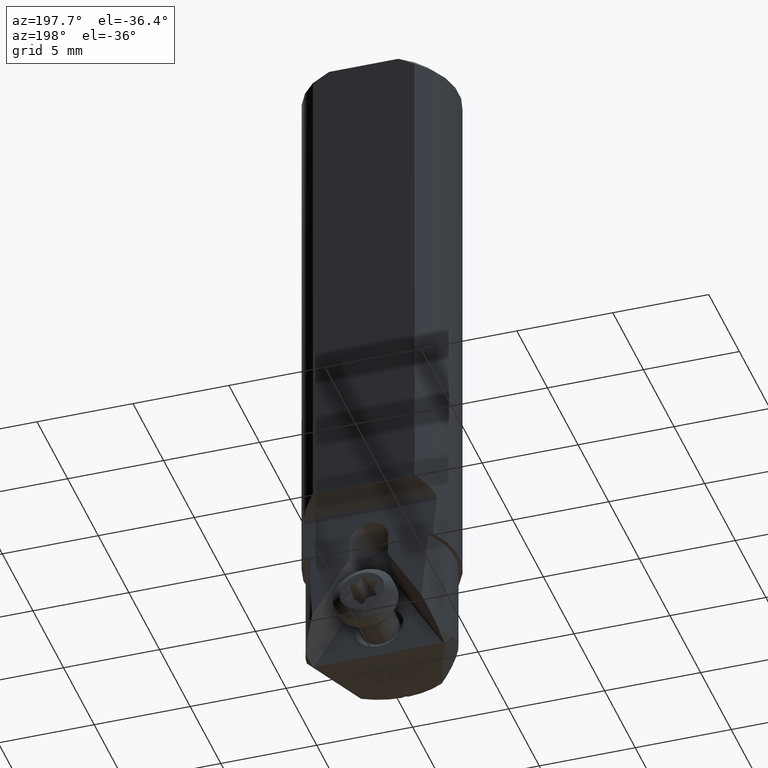
[diagram: clean part render]
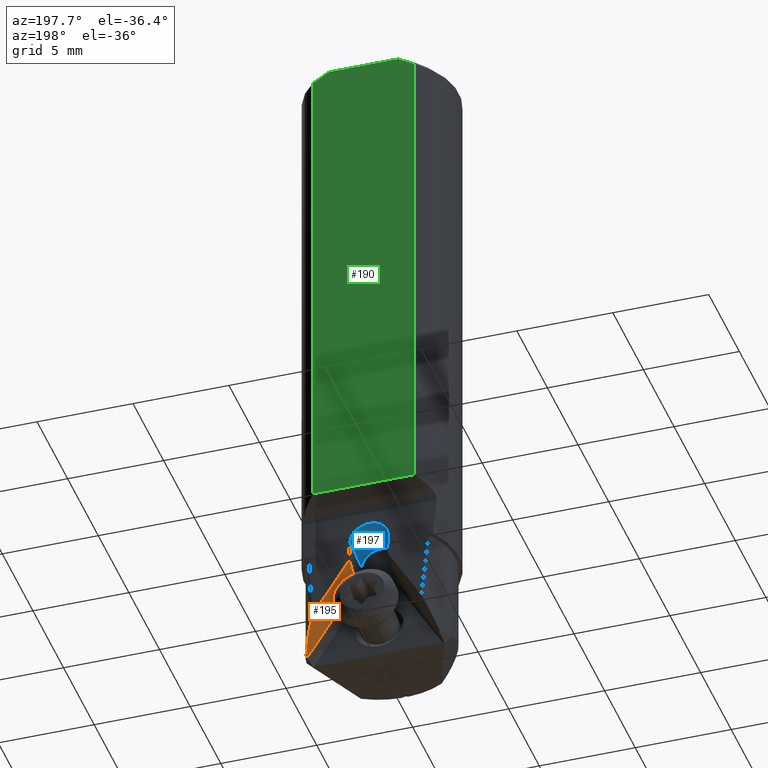
[diagram: same view with three faces highlighted in distinct colors, each labeled with its STEP entity id]
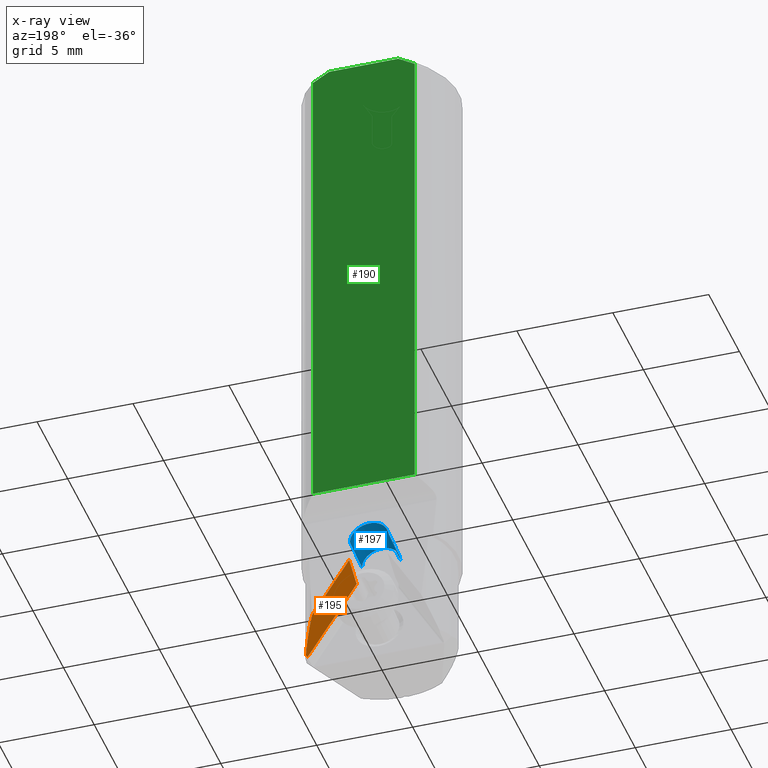
[diagram: x-ray of the same camera — body ghosted, the three highlighted faces saturated]
A machine part, auxiliary view with three faces highlighted in distinct colors.
The next image is the same camera in x-ray (body ghosted, the three faces saturated) — at least one of them is partly hidden behind the body in this view.
Their STEP definitions:

[orange] entity #195 — the highlighted planar face has unit normal (0.8501, -0.2329, 0.4723).
#87=ELLIPSE('',#1236,8.04546452858742,3.8);
#106=FACE_OUTER_BOUND('',#286,.T.);
#195=ADVANCED_FACE('',(#106),#257,.F.);
#257=PLANE('',#1237);
#286=EDGE_LOOP('',(#529,#530,#531,#532,#533));
#357=LINE('',#1824,#427);
#358=LINE('',#1828,#428);
#359=LINE('',#1830,#429);
#360=LINE('',#1832,#430);
#427=VECTOR('',#1422,1.);
#428=VECTOR('',#1427,1.);
#429=VECTOR('',#1428,1.);
#430=VECTOR('',#1429,1.);
#529=ORIENTED_EDGE('',*,*,#965,.F.);
#530=ORIENTED_EDGE('',*,*,#966,.T.);
#531=ORIENTED_EDGE('',*,*,#967,.T.);
#532=ORIENTED_EDGE('',*,*,#968,.T.);
#533=ORIENTED_EDGE('',*,*,#964,.T.);
#841=VERTEX_POINT('',#1809);
#848=VERTEX_POINT('',#1823);
#849=VERTEX_POINT('',#1827);
#850=VERTEX_POINT('',#1829);
#851=VERTEX_POINT('',#1831);
#964=EDGE_CURVE('',#841,#848,#357,.T.);
#965=EDGE_CURVE('',#849,#848,#87,.T.);
#966=EDGE_CURVE('',#849,#850,#358,.T.);
#967=EDGE_CURVE('',#850,#851,#359,.T.);
#968=EDGE_CURVE('',#851,#841,#360,.T.);
#1236=AXIS2_PLACEMENT_3D('',#1826,#1425,#1426);
#1237=AXIS2_PLACEMENT_3D('',#1833,#1430,#1431);
#1422=DIRECTION('',(0.500000000000085,0.0754790873051378,-0.862729915662775));
#1425=DIRECTION('',(0.850114077911012,-0.232860132679503,0.472315798111807));
#1426=DIRECTION('',(0.455535416994246,-0.124778591953393,-0.881429399812604));
#1427=DIRECTION('',(-0.170866844364106,-0.970365417252635,-0.170866844347206));
#1428=DIRECTION('',(-0.500000000000125,-0.0754790873052338,0.862729915662743));
#1429=DIRECTION('',(5.84002763725412E-13,0.896918116566819,0.442196666851109));
#1430=DIRECTION('',(0.850114077911012,-0.232860132679503,0.472315798111807));
#1431=DIRECTION('',(-0.500000000000109,-0.0754790873051804,0.862729915662757));
#1809=CARTESIAN_POINT('',(0.9999999999993,2.239972578096,-29.7549607898));
#1823=CARTESIAN_POINT('',(2.84549311947516,2.51856485066785,-32.9392850364427));
#1824=CARTESIAN_POINT('',(0.9999999999993,2.239972578096,-29.7549607898));
#1826=CARTESIAN_POINT('',(0.,0.,-29.0594224074511));
#1827=CARTESIAN_POINT('',(3.47908722465652,1.52838217839165,-34.5678592658366));
#1828=CARTESIAN_POINT('',(3.479087224657,1.528382178392,-34.56785926584));
#1829=CARTESIAN_POINT('',(3.452689359681,1.378466755321,-34.59425713081));
#1830=CARTESIAN_POINT('',(3.452689359681,1.378466755321,-34.59425713081));
#1831=CARTESIAN_POINT('',(0.9999999999985,1.008213246697,-30.36224016196));
#1832=CARTESIAN_POINT('',(0.9999999999985,1.008213246697,-30.36224016196));
#1833=CARTESIAN_POINT('',(2.226779725833,1.809285340458,-32.17535961469));

[blue] entity #197 — the highlighted cylindrical surface (edge-blend (fillet) strip) has radius 1 mm, axis along (0, 0.9962, 0.0872).
#57=CYLINDRICAL_SURFACE('',#1240,1.);
#108=FACE_OUTER_BOUND('',#288,.T.);
#197=ADVANCED_FACE('',(#108),#57,.F.);
#288=EDGE_LOOP('',(#539,#540,#541,#542));
#363=LINE('',#1838,#433);
#364=LINE('',#1842,#434);
#433=VECTOR('',#1434,1.);
#434=VECTOR('',#1439,1.);
#539=ORIENTED_EDGE('',*,*,#971,.F.);
#540=ORIENTED_EDGE('',*,*,#972,.T.);
#541=ORIENTED_EDGE('',*,*,#973,.T.);
#542=ORIENTED_EDGE('',*,*,#957,.T.);
#842=VERTEX_POINT('',#1810);
#843=VERTEX_POINT('',#1812);
#853=VERTEX_POINT('',#1837);
#854=VERTEX_POINT('',#1841);
#957=EDGE_CURVE('',#843,#842,#1111,.T.);
#971=EDGE_CURVE('',#853,#842,#363,.T.);
#972=EDGE_CURVE('',#853,#854,#1112,.T.);
#973=EDGE_CURVE('',#854,#843,#364,.T.);
#1111=CIRCLE('',#1232,1.);
#1112=CIRCLE('',#1239,1.);
#1232=AXIS2_PLACEMENT_3D('',#1811,#1412,#1413);
#1239=AXIS2_PLACEMENT_3D('',#1840,#1437,#1438);
#1240=AXIS2_PLACEMENT_3D('',#1843,#1440,#1441);
#1412=DIRECTION('',(0.,0.996194698091544,0.0871557427499638));
#1413=DIRECTION('',(-1.,-4.29777741173254E-13,4.91273688396632E-12));
#1434=DIRECTION('',(0.,0.996194698091788,0.087155742747169));
#1437=DIRECTION('',(0.,-0.996194698091544,-0.0871557427499638));
#1438=DIRECTION('',(1.,0.,0.));
#1439=DIRECTION('',(0.,0.996194698091716,0.0871557427479914));
#1440=DIRECTION('',(0.,0.996194698091544,0.0871557427499638));
#1441=DIRECTION('',(1.,1.1091930325613E-12,-1.26773591624385E-11));
#1810=CARTESIAN_POINT('',(1.,2.136372377569,-28.57080507919));
#1811=CARTESIAN_POINT('',(0.,2.13637237757,-28.57080507919));
#1812=CARTESIAN_POINT('',(-1.,2.136372377568,-28.57080507919));
#1837=CARTESIAN_POINT('',(1.,0.1639068753467,-28.74337344983));
#1838=CARTESIAN_POINT('',(1.,0.1639068753467,-28.74337344983));
#1840=CARTESIAN_POINT('',(0.,0.1639068753457,-28.74337344983));
#1841=CARTESIAN_POINT('',(-1.,0.1639068753458,-28.74337344983));
#1842=CARTESIAN_POINT('',(-1.,0.1639068753458,-28.74337344983));
#1843=CARTESIAN_POINT('',(0.,0.1244575653027,-28.74682481725));

[green] entity #190 — the highlighted planar face has unit normal (0, 1, 0).
#101=FACE_OUTER_BOUND('',#281,.T.);
#162=B_SPLINE_CURVE_WITH_KNOTS('',3,(#1742,#1743,#1744,#1745),
 .UNSPECIFIED.,.F.,.F.,(4,4),(0.,1.),.UNSPECIFIED.);
#163=B_SPLINE_CURVE_WITH_KNOTS('',3,(#1746,#1747,#1748,#1749),
 .UNSPECIFIED.,.F.,.F.,(4,4),(0.,1.),.UNSPECIFIED.);
#190=ADVANCED_FACE('',(#101),#254,.T.);
#254=PLANE('',#1222);
#281=EDGE_LOOP('',(#491,#492,#493,#494,#495,#496));
#346=LINE('',#1733,#416);
#347=LINE('',#1739,#417);
#348=LINE('',#1751,#418);
#349=LINE('',#1753,#419);
#416=VECTOR('',#1379,1.);
#417=VECTOR('',#1386,1.);
#418=VECTOR('',#1387,1.);
#419=VECTOR('',#1388,1.);
#491=ORIENTED_EDGE('',*,*,#939,.T.);
#492=ORIENTED_EDGE('',*,*,#940,.T.);
#493=ORIENTED_EDGE('',*,*,#936,.F.);
#494=ORIENTED_EDGE('',*,*,#941,.T.);
#495=ORIENTED_EDGE('',*,*,#942,.T.);
#496=ORIENTED_EDGE('',*,*,#943,.T.);
#825=VERTEX_POINT('',#1730);
#826=VERTEX_POINT('',#1732);
#829=VERTEX_POINT('',#1740);
#830=VERTEX_POINT('',#1741);
#831=VERTEX_POINT('',#1750);
#832=VERTEX_POINT('',#1752);
#936=EDGE_CURVE('',#826,#825,#346,.T.);
#939=EDGE_CURVE('',#829,#830,#347,.T.);
#940=EDGE_CURVE('',#830,#825,#162,.T.);
#941=EDGE_CURVE('',#826,#831,#163,.T.);
#942=EDGE_CURVE('',#831,#832,#348,.T.);
#943=EDGE_CURVE('',#832,#829,#349,.T.);
#1222=AXIS2_PLACEMENT_3D('',#1754,#1389,#1390);
#1379=DIRECTION('',(-1.,0.,0.));
#1386=DIRECTION('',(0.,2.577174466299E-14,1.));
#1387=DIRECTION('',(1.32365083133E-14,-3.338054546825E-14,-1.));
#1388=DIRECTION('',(-1.,0.,0.));
#1389=DIRECTION('',(0.,1.,0.));
#1390=DIRECTION('',(0.,0.,1.));
#1730=CARTESIAN_POINT('',(-1.80277563773199,3.,-1.199040866595E-14));
#1732=CARTESIAN_POINT('',(1.80277563773199,3.,-1.15463194561E-14));
#1733=CARTESIAN_POINT('',(1.802775637732,3.,0.));
#1739=CARTESIAN_POINT('',(-2.645751311065,2.999999999999,-25.83049845931));
#1740=CARTESIAN_POINT('',(-2.64575131106501,2.999999999999,-25.8304984593107));
#1741=CARTESIAN_POINT('',(-2.64575131106494,2.99999999999983,-0.500000000000094));
#1742=CARTESIAN_POINT('',(-2.64575131106494,2.99999999999983,-0.500000000000094));
#1743=CARTESIAN_POINT('',(-2.37326297622355,2.99999999999983,-0.319765907710981));
#1744=CARTESIAN_POINT('',(-2.09321403861178,3.,-0.149598649533703));
#1745=CARTESIAN_POINT('',(-1.80277563773199,3.,-1.199040866595E-14));
#1746=CARTESIAN_POINT('',(1.80277563773199,3.,-1.15463194561E-14));
#1747=CARTESIAN_POINT('',(2.09321403861178,3.,-0.149598649533702));
#1748=CARTESIAN_POINT('',(2.37326297622349,3.,-0.319765907711077));
#1749=CARTESIAN_POINT('',(2.64575131106488,3.,-0.500000000000189));
#1750=CARTESIAN_POINT('',(2.645751311065,3.,-0.500000000000135));
#1751=CARTESIAN_POINT('',(2.645751311065,3.,-0.5));
#1752=CARTESIAN_POINT('',(2.64575131106518,2.99999999999908,-25.8304984593106));
#1753=CARTESIAN_POINT('',(2.645751311065,2.999999999999,-25.83049845931));
#1754=CARTESIAN_POINT('',(0.,3.,-12.91524922966));